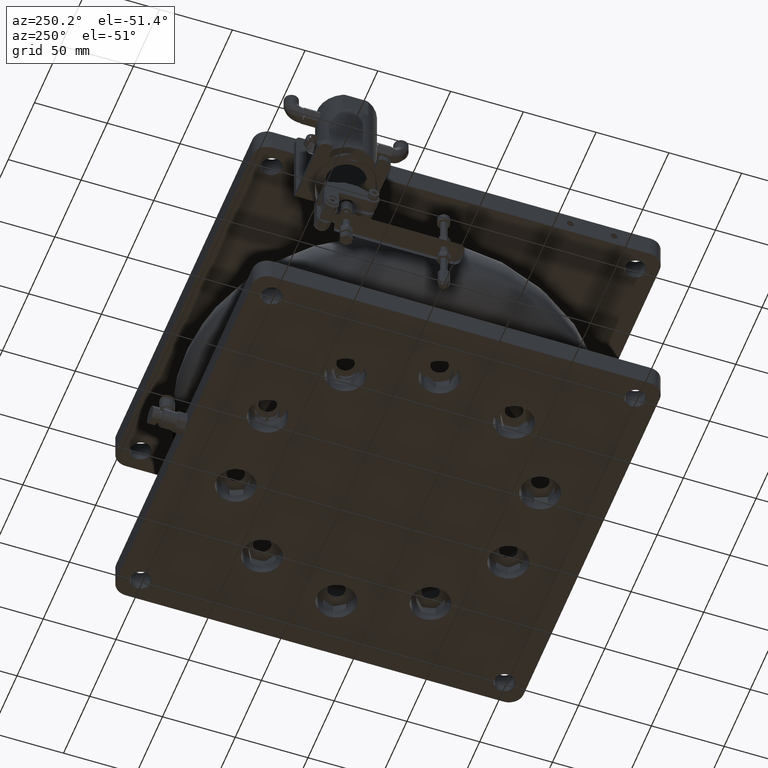
[diagram: clean part render]
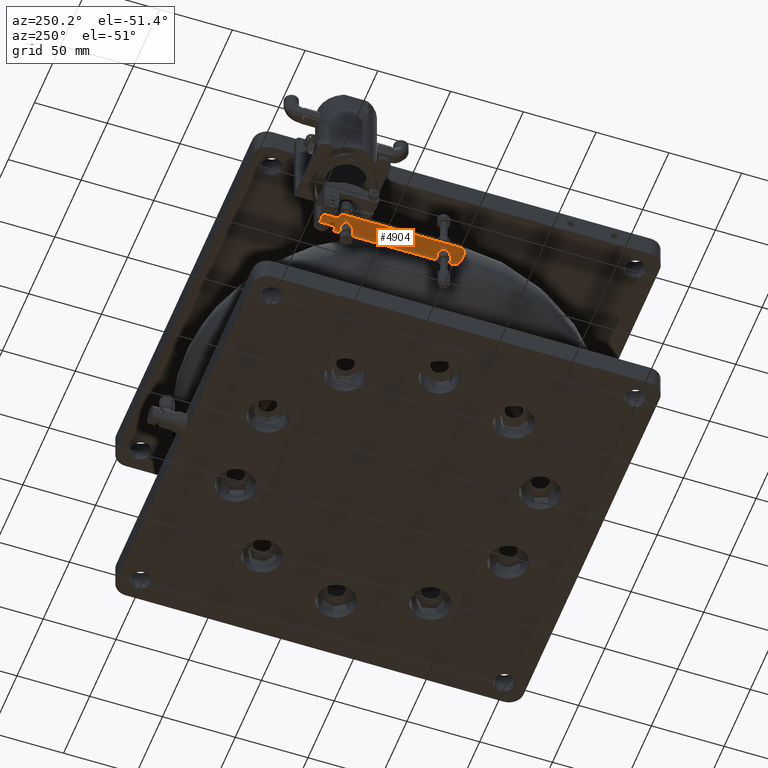
[diagram: same view with one face highlighted and labeled with its STEP entity id]
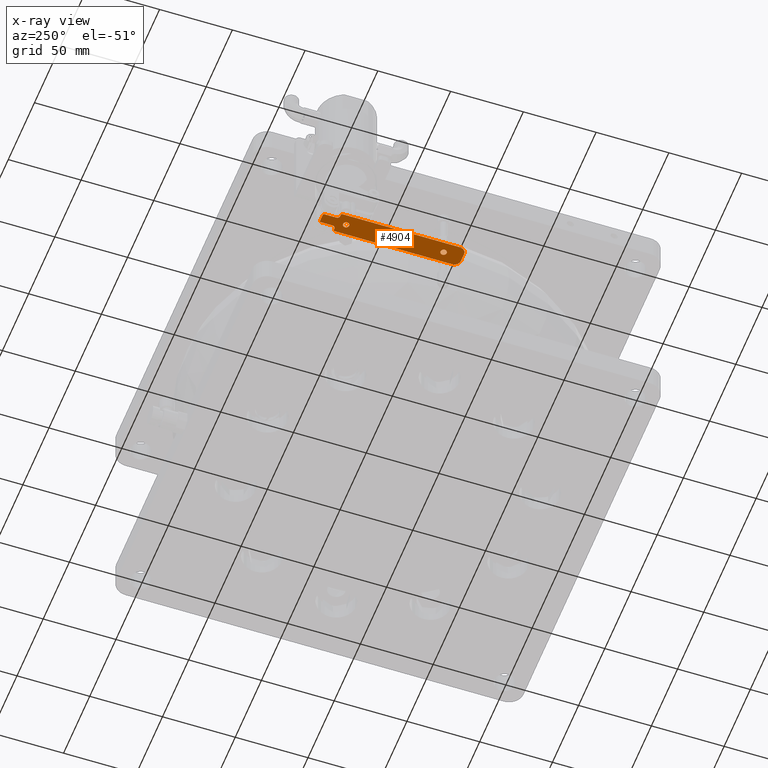
[diagram: x-ray of the same camera — body ghosted, the highlighted face saturated]
A machine part, auxiliary view. The second image highlights one B-rep face of the part: STEP entity #4904.
The next image is the same camera in x-ray: the body ghosted, the highlighted face saturated — about 0% of this face is hidden behind the body in this view.
In plain terms, the highlighted planar face has unit normal (0, -0, -1).
Its self-contained STEP definition (entity closure, byte-faithful):
#229 = CARTESIAN_POINT ( 'NONE',  ( -39.85068586333200358, 66.37900374810489268, 124.5000000000009663 ) ) ;
#233 = CARTESIAN_POINT ( 'NONE',  ( -36.14484242147124604, 70.69386750514597395, 124.5000000000009805 ) ) ;
#236 = LINE ( 'NONE', #429, #31167 ) ;
#395 = CARTESIAN_POINT ( 'NONE',  ( -44.19052148631738675, 72.45413560931432073, 124.5000000000009379 ) ) ;
#423 = CARTESIAN_POINT ( 'NONE',  ( -39.80122654258424575, 66.35723437368851307, 124.5000000000009237 ) ) ;
#429 = CARTESIAN_POINT ( 'NONE',  ( -40.69052148631737964, 70.45413560931432073, 124.5000000000009521 ) ) ;
#493 = CARTESIAN_POINT ( 'NONE',  ( -41.40122324521774289, -0.5696947893978466793, 124.5000000000010374 ) ) ;
#595 = EDGE_CURVE ( 'NONE', #10519, #949, #11530, .T. ) ;
#609 = CARTESIAN_POINT ( 'NONE',  ( -38.59058884332932138, 64.18744334804384266, 124.5000000000009663 ) ) ;
#678 = CARTESIAN_POINT ( 'NONE',  ( -42.79055516482335264, -2.679210521320460447, 124.5000000000009663 ) ) ;
#725 = CARTESIAN_POINT ( 'NONE',  ( -39.10318257006136378, -3.928426463864237661, 124.5000000000010090 ) ) ;
#807 = CARTESIAN_POINT ( 'NONE',  ( -39.88391330723290906, 66.39313422463543191, 124.5000000000009948 ) ) ;
#879 = CARTESIAN_POINT ( 'NONE',  ( -42.59362025068861612, -1.656569446948876534, 124.5000000000009948 ) ) ;
#940 = FACE_BOUND ( 'NONE', #11590, .T. ) ;
#949 = VERTEX_POINT ( 'NONE', #31623 ) ;
#1252 = CARTESIAN_POINT ( 'NONE',  ( -40.95774075453376639, -4.645864390685685130, 124.5000000000009805 ) ) ;
#1280 = EDGE_CURVE ( 'NONE', #24017, #16582, #27790, .T. ) ;
#1393 = VERTEX_POINT ( 'NONE', #5526 ) ;
#1651 = CARTESIAN_POINT ( 'NONE',  ( -40.13694558172575455, -4.573677987715503157, 124.5000000000009805 ) ) ;
#1846 = CARTESIAN_POINT ( 'NONE',  ( -38.75152287099698611, -3.352472569770414079, 124.5000000000009805 ) ) ;
#1987 = ORIENTED_EDGE ( 'NONE', *, *, #27213, .F. ) ;
#2047 = CARTESIAN_POINT ( 'NONE',  ( -38.78742272194548235, -3.435159334419681354, 124.5000000000009948 ) ) ;
#2133 = DIRECTION ( 'NONE',  ( -1.000000000000000000, 0.000000000000000000, -3.083952846180988111E-15 ) ) ;
#2194 = VECTOR ( 'NONE', #19615, 1000.000000000000000 ) ;
#2243 = CARTESIAN_POINT ( 'NONE',  ( -42.65518013726146052, 63.71225201842275965, 124.5000000000009379 ) ) ;
#2552 = DIRECTION ( 'NONE',  ( -1.000000000000000000, 0.000000000000000000, 0.000000000000000000 ) ) ;
#2619 = CARTESIAN_POINT ( 'NONE',  ( -42.79045412930543080, 64.72082787058745623, 124.5000000000009521 ) ) ;
#2821 = CARTESIAN_POINT ( 'NONE',  ( -47.69052148631735832, 70.45413560931432073, 124.5000000000009379 ) ) ;
#3155 = ORIENTED_EDGE ( 'NONE', *, *, #22465, .T. ) ;
#3184 = CARTESIAN_POINT ( 'NONE',  ( -36.03747453631026332, 70.64166416822567385, 124.5000000000009521 ) ) ;
#3492 = DIRECTION ( 'NONE',  ( -2.397764376542033099E-18, -1.000000000000000000, -7.666227838697817919E-33 ) ) ;
#3574 = CARTESIAN_POINT ( 'NONE',  ( -38.63973720874177076, 63.92907958156436621, 124.5000000000009805 ) ) ;
#3684 = CARTESIAN_POINT ( 'NONE',  ( -38.59058884332932848, -2.812556651957967446, 124.5000000000009948 ) ) ;
#3760 = CARTESIAN_POINT ( 'NONE',  ( -40.16563592142306760, 66.50498742005798647, 124.5000000000009521 ) ) ;
#3783 = VECTOR ( 'NONE', #6136, 1000.000000000000000 ) ;
#4409 = CARTESIAN_POINT ( 'NONE',  ( -40.69052148631737964, -4.645864390685685130, 124.5000000000009805 ) ) ;
#4461 = B_SPLINE_CURVE_WITH_KNOTS ( 'NONE', 3,
 ( #10086, #27297, #12878, #21960, #7117, #9703, #16021, #36369, #30245, #30451, #18790, #24540, #233, #3184, #33976, #36555, #33595, #9317, #15247, #30829 ),
 .UNSPECIFIED., .F., .F.,
 ( 4, 1, 1, 1, 2, 2, 2, 1, 1, 1, 2, 2, 4 ),
 ( 0.000000000000000000, 0.1249999999999069633, 0.1874999999998679390, 0.2187499999998550604, 0.2343749999998475109, 0.2499999999998399614, 0.4999999999998874234, 0.6249999999999111822, 0.6874999999999221734, 0.7187499999999333866, 0.7343749999999417133, 0.7499999999999499289, 1.000000000000000000 ),
 .UNSPECIFIED. ) ;
#4605 = CARTESIAN_POINT ( 'NONE',  ( -39.90201551341391450, -0.5994524821116249402, 124.5000000000010090 ) ) ;
#4608 = CARTESIAN_POINT ( 'NONE',  ( -42.71837928638630189, -3.099328560412121014, 124.5000000000009805 ) ) ;
#4733 = CARTESIAN_POINT ( 'NONE',  ( -43.69052148631738675, -15.54586439068569881, 124.5000000000009948 ) ) ;
#4742 = VECTOR ( 'NONE', #20587, 1000.000000000000000 ) ;
#4805 = CARTESIAN_POINT ( 'NONE',  ( -39.97981972741683876, -4.522033991973533951, 124.5000000000010090 ) ) ;
#4904 = ADVANCED_FACE ( 'NONE', ( #940, #31347, #10417 ), #13774, .F. ) ;
#4920 = ORIENTED_EDGE ( 'NONE', *, *, #14624, .F. ) ;
#5020 = CARTESIAN_POINT ( 'NONE',  ( -46.19052148631738675, 70.45413560931432073, 124.5000000000009379 ) ) ;
#5349 = VECTOR ( 'NONE', #29148, 1000.000000000000000 ) ;
#5381 = CARTESIAN_POINT ( 'NONE',  ( -42.68341957765395023, 63.79041047197202374, 124.5000000000010090 ) ) ;
#5526 = CARTESIAN_POINT ( 'NONE',  ( -43.69052148631737253, 81.45413560931433494, 124.5000000000009237 ) ) ;
#5748 = CARTESIAN_POINT ( 'NONE',  ( -33.19052148631737964, 81.45413560931433494, 124.5000000000010232 ) ) ;
#5772 = CARTESIAN_POINT ( 'NONE',  ( -41.57981643004984562, 62.55103684494017813, 124.5000000000009379 ) ) ;
#5776 = VERTEX_POINT ( 'NONE', #37423 ) ;
#5866 = VERTEX_POINT ( 'NONE', #21859 ) ;
#5968 = CARTESIAN_POINT ( 'NONE',  ( -42.27786040257054623, 65.83669768249669119, 124.5000000000009805 ) ) ;
#6028 = ORIENTED_EDGE ( 'NONE', *, *, #22800, .F. ) ;
#6136 = DIRECTION ( 'NONE',  ( 2.397764376542033099E-18, 1.000000000000000000, 7.666227838697817919E-33 ) ) ;
#6332 = CARTESIAN_POINT ( 'NONE',  ( -38.72586283537331298, 65.19601920020559760, 124.5000000000009379 ) ) ;
#6511 = ORIENTED_EDGE ( 'NONE', *, *, #11759, .F. ) ;
#6535 = CARTESIAN_POINT ( 'NONE',  ( -38.84449918115577560, 65.49642512723265497, 124.5000000000009521 ) ) ;
#6582 = CARTESIAN_POINT ( 'NONE',  ( -40.69052148631737964, 62.35413560931431221, 124.5000000000009521 ) ) ;
#6651 = CARTESIAN_POINT ( 'NONE',  ( -38.76565334752819325, -3.385700013671575803, 124.5000000000009948 ) ) ;
#6722 = CARTESIAN_POINT ( 'NONE',  ( -40.02673117029988248, 62.46126330308391772, 124.5000000000009379 ) ) ;
#6838 = ORIENTED_EDGE ( 'NONE', *, *, #22061, .F. ) ;
#6911 = CARTESIAN_POINT ( 'NONE',  ( -38.76565334753040304, 63.61429998632620197, 124.5000000000009805 ) ) ;
#7117 = CARTESIAN_POINT ( 'NONE',  ( -37.08849511129873378, 71.82195761134396150, 124.5000000000010090 ) ) ;
#7183 = CARTESIAN_POINT ( 'NONE',  ( -42.38017006142680998, -3.825959279653884160, 124.5000000000010232 ) ) ;
#7376 = CARTESIAN_POINT ( 'NONE',  ( -42.64973523899029573, -3.302032616525759412, 124.5000000000009805 ) ) ;
#7481 = VERTEX_POINT ( 'NONE', #7670 ) ;
#7562 = CARTESIAN_POINT ( 'NONE',  ( -39.80122654258413206, -0.6427656263130385739, 124.5000000000009948 ) ) ;
#7595 = DIRECTION ( 'NONE',  ( -3.197239859636987400E-15, 4.319345843114196478E-16, 1.000000000000000000 ) ) ;
#7656 = CARTESIAN_POINT ( 'NONE',  ( -39.94861727768159199, 62.48948511488342206, 124.5000000000009237 ) ) ;
#7670 = CARTESIAN_POINT ( 'NONE',  ( -37.69052148631738675, -15.54586439068570058, 124.5000000000009948 ) ) ;
#7821 = EDGE_CURVE ( 'NONE', #5776, #29063, #23346, .T. ) ;
#7820 = CIRCLE ( 'NONE', #24258, 4.500000000000003553 ) ;
#7904 = CARTESIAN_POINT ( 'NONE',  ( -37.19052148631737964, 80.95413560931434915, 124.5000000000009663 ) ) ;
#7972 = CARTESIAN_POINT ( 'NONE',  ( -38.69762339498083747, -1.882139253343686480, 124.5000000000009663 ) ) ;
#7984 = DIRECTION ( 'NONE',  ( 0.7071067811865622277, -0.7071067811865328068, 0.000000000000000000 ) ) ;
#8169 = CARTESIAN_POINT ( 'NONE',  ( -33.69052148631737964, 70.45413560931432073, 124.5000000000009805 ) ) ;
#8351 = CARTESIAN_POINT ( 'NONE',  ( -42.79055516482335975, 64.32078947867776719, 124.5000000000009805 ) ) ;
#8466 = EDGE_CURVE ( 'NONE', #14531, #25662, #17202, .T. ) ;
#8541 = CARTESIAN_POINT ( 'NONE',  ( -42.07308355949390943, 62.86679669305534901, 124.5000000000009521 ) ) ;
#8610 = DIRECTION ( 'NONE',  ( 3.197239859636987400E-15, -4.319345843114216692E-16, -1.000000000000000000 ) ) ;
#8705 = ORIENTED_EDGE ( 'NONE', *, *, #595, .F. ) ;
#8738 = CARTESIAN_POINT ( 'NONE',  ( -41.73281100423557888, 66.30015791447792139, 124.5000000000009663 ) ) ;
#9313 = CARTESIAN_POINT ( 'NONE',  ( -39.93435326047857359, 62.49492185664038146, 124.5000000000009237 ) ) ;
#9317 = CARTESIAN_POINT ( 'NONE',  ( -35.69042098450512412, 70.50094340860604802, 124.5000000000009805 ) ) ;
#9499 = CARTESIAN_POINT ( 'NONE',  ( -40.69052148631737964, 62.35413560931431221, 124.5000000000009521 ) ) ;
#9575 = CARTESIAN_POINT ( 'NONE',  ( -41.73281100423584888, -0.6998420855260945039, 124.5000000000009663 ) ) ;
#9703 = CARTESIAN_POINT ( 'NONE',  ( -37.07258777325819921, 71.77727875118225143, 124.5000000000010232 ) ) ;
#9820 = VERTEX_POINT ( 'NONE', #18474 ) ;
#9892 = CARTESIAN_POINT ( 'NONE',  ( -40.69052148631737964, 66.55413560931431505, 124.5000000000009521 ) ) ;
#10086 = CARTESIAN_POINT ( 'NONE',  ( -37.19052148631738675, 72.45413560931432073, 124.5000000000009663 ) ) ;
#10332 = CARTESIAN_POINT ( 'NONE',  ( -37.19052148631738675, 72.45413560931432073, 124.5000000000009663 ) ) ;
#10357 = CARTESIAN_POINT ( 'NONE',  ( -42.77214985273170100, -2.875844980556533148, 124.5000000000009521 ) ) ;
#10417 = FACE_BOUND ( 'NONE', #19202, .T. ) ;
#10519 = VERTEX_POINT ( 'NONE', #25640 ) ;
#10544 = CARTESIAN_POINT ( 'NONE',  ( -39.00087291119729116, -1.265769501724441026, 124.5000000000009948 ) ) ;
#10546 = CARTESIAN_POINT ( 'NONE',  ( -42.53880942637098173, -1.543837280926815714, 124.5000000000009663 ) ) ;
#10735 = CARTESIAN_POINT ( 'NONE',  ( -38.59048780781140664, -2.412518260049546726, 124.5000000000009663 ) ) ;
#10944 = CARTESIAN_POINT ( 'NONE',  ( -39.88391330723287354, -0.6068657753650591458, 124.5000000000009663 ) ) ;
#11245 = EDGE_CURVE ( 'NONE', #15043, #37499, #21246, .T. ) ;
#11318 = CARTESIAN_POINT ( 'NONE',  ( -41.69254859606880359, 62.60584766925568800, 124.5000000000009379 ) ) ;
#11516 = CARTESIAN_POINT ( 'NONE',  ( -42.38017006143956422, 63.17404072035704132, 124.5000000000009521 ) ) ;
#11530 = LINE ( 'NONE', #8169, #25479 ) ;
#11590 = EDGE_LOOP ( 'NONE', ( #37481, #36961 ) ) ;
#11713 = CARTESIAN_POINT ( 'NONE',  ( -40.82395274827305798, 66.55413560931432926, 124.5000000000009521 ) ) ;
#11759 = EDGE_CURVE ( 'NONE', #9820, #14531, #18259, .T. ) ;
#11797 = DIRECTION ( 'NONE',  ( -3.197239859636987400E-15, 4.319345843114196478E-16, 1.000000000000000000 ) ) ;
#11868 = LINE ( 'NONE', #36347, #35211 ) ;
#11905 = CARTESIAN_POINT ( 'NONE',  ( -42.61538962510526574, 65.29397123230199895, 124.5000000000009521 ) ) ;
#12669 = CARTESIAN_POINT ( 'NONE',  ( -39.47372170742714559, 66.17673943136614412, 124.5000000000009237 ) ) ;
#12746 = CARTESIAN_POINT ( 'NONE',  ( -42.63693761571443730, -1.757369071709116826, 124.5000000000009521 ) ) ;
#12793 = DIRECTION ( 'NONE',  ( 0.7071067811865474617, 0.7071067811865474617, 0.000000000000000000 ) ) ;
#12795 = CARTESIAN_POINT ( 'NONE',  ( -39.41042659735420273, -4.235512965803842178, 124.5000000000009948 ) ) ;
#12874 = CARTESIAN_POINT ( 'NONE',  ( -38.59048780781140664, 64.58748173994959529, 124.5000000000009521 ) ) ;
#12878 = CARTESIAN_POINT ( 'NONE',  ( -37.17296856158299789, 72.13973393617922625, 124.5000000000009521 ) ) ;
#12905 = EDGE_CURVE ( 'NONE', #16582, #1393, #11868, .T. ) ;
#13067 = CARTESIAN_POINT ( 'NONE',  ( -39.64823196837936337, 62.60811330416871101, 124.5000000000009663 ) ) ;
#13319 = CARTESIAN_POINT ( 'NONE',  ( -41.49712966540318604, -4.484863006005483044, 124.5000000000009805 ) ) ;
#13365 = LINE ( 'NONE', #28179, #36241 ) ;
#13519 = CARTESIAN_POINT ( 'NONE',  ( -42.27786040257254996, -1.163302317503473127, 124.5000000000010232 ) ) ;
#13641 = VERTEX_POINT ( 'NONE', #4733 ) ;
#13711 = CARTESIAN_POINT ( 'NONE',  ( -40.69052148631737964, -0.4458643906856893380, 124.5000000000009805 ) ) ;
#13774 = PLANE ( 'NONE',  #18412 ) ;
#13902 = CARTESIAN_POINT ( 'NONE',  ( -38.63973720874176365, -3.070920418422119269, 124.5000000000010090 ) ) ;
#14029 = B_SPLINE_CURVE_WITH_KNOTS ( 'NONE', 3,
 ( #4409, #22410, #25947, #1651, #14106, #4805, #33711, #19428, #20025, #12795, #725, #16865, #31465, #2047, #6651, #1846, #30752, #13902, #3684, #10735, #16461, #25563, #7972, #37590, #28518, #24846, #35027, #10544, #22599, #31662, #34620, #7562, #37978, #10944, #4605, #16667, #28718, #13711 ),
 .UNSPECIFIED., .F., .F.,
 ( 4, 1, 1, 1, 2, 2, 2, 1, 1, 1, 2, 2, 2, 1, 1, 1, 2, 2, 2, 1, 1, 1, 2, 2, 4 ),
 ( 0.000000000000000000, 0.06249999999998781530, 0.09374999999998009925, 0.1093749999999777678, 0.1171874999999781425, 0.1249999999999785172, 0.2499999999999839018, 0.3124999999999852340, 0.3437499999999859002, 0.3593749999999855671, 0.3671874999999847344, 0.3749999999999839573, 0.4999999999999760192, 0.5624999999999720224, 0.5937499999999704681, 0.6093749999999702460, 0.6171874999999700240, 0.6249999999999698019, 0.7499999999999724665, 0.8124999999999747979, 0.8437499999999746869, 0.8593749999999760192, 0.8671874999999780176, 0.8749999999999800160, 1.000000000000000000 ),
 .UNSPECIFIED. ) ;
#14106 = CARTESIAN_POINT ( 'NONE',  ( -40.02673117030510497, -4.538736696916096491, 124.5000000000009805 ) ) ;
#14159 = VECTOR ( 'NONE', #28183, 1000.000000000000000 ) ;
#14283 = EDGE_CURVE ( 'NONE', #5866, #949, #21760, .T. ) ;
#14298 = CARTESIAN_POINT ( 'NONE',  ( -41.02065105599979944, 66.53570503834323802, 124.5000000000009521 ) ) ;
#14479 = CARTESIAN_POINT ( 'NONE',  ( -41.47902745922130663, 62.50772370074027151, 124.5000000000009521 ) ) ;
#14531 = VERTEX_POINT ( 'NONE', #7904 ) ;
#14587 = ORIENTED_EDGE ( 'NONE', *, *, #11245, .F. ) ;
#14624 = EDGE_CURVE ( 'NONE', #36290, #24017, #20852, .T. ) ;
#14677 = CARTESIAN_POINT ( 'NONE',  ( -41.49712966540163706, 62.51513699399320956, 124.5000000000009663 ) ) ;
#14880 = CARTESIAN_POINT ( 'NONE',  ( -42.62952010163708394, 65.26074378839996371, 124.5000000000009237 ) ) ;
#15043 = VERTEX_POINT ( 'NONE', #6582 ) ;
#15115 = CARTESIAN_POINT ( 'NONE',  ( -40.69052148631737964, -0.4458643906856893380, 124.5000000000009805 ) ) ;
#15247 = CARTESIAN_POINT ( 'NONE',  ( -35.44502451146388466, 70.45413560931436336, 124.5000000000010090 ) ) ;
#15267 = ORIENTED_EDGE ( 'NONE', *, *, #14283, .T. ) ;
#15305 = CARTESIAN_POINT ( 'NONE',  ( -37.69052148631737253, 81.45413560931433494, 124.5000000000009521 ) ) ;
#15442 = CARTESIAN_POINT ( 'NONE',  ( -38.78742272194914165, 63.56484066557664647, 124.5000000000009521 ) ) ;
#15515 = CARTESIAN_POINT ( 'NONE',  ( -41.02065105600771489, -0.4642949616568036175, 124.5000000000009521 ) ) ;
#15691 = EDGE_CURVE ( 'NONE', #25662, #18172, #4461, .T. ) ;
#15820 = CARTESIAN_POINT ( 'NONE',  ( -38.96791766427912762, 63.23733583041372697, 124.5000000000009663 ) ) ;
#15893 = CARTESIAN_POINT ( 'NONE',  ( -40.69052148631737964, -4.645864390685685130, 124.5000000000009805 ) ) ;
#16021 = CARTESIAN_POINT ( 'NONE',  ( -37.06161719529919907, 71.74756120228128964, 124.5000000000009948 ) ) ;
#16086 = CARTESIAN_POINT ( 'NONE',  ( -42.61538962510618234, -1.706028767698107185, 124.5000000000009805 ) ) ;
#16461 = CARTESIAN_POINT ( 'NONE',  ( -38.60889311990305117, -2.215883800812455284, 124.5000000000009663 ) ) ;
#16582 = VERTEX_POINT ( 'NONE', #35718 ) ;
#16613 = DIRECTION ( 'NONE',  ( -1.380998469716210257E-30, -1.000000000000000000, 4.319345843114216692E-16 ) ) ;
#16667 = CARTESIAN_POINT ( 'NONE',  ( -40.16563592141402950, -0.4950125799419888284, 124.5000000000009663 ) ) ;
#16669 = CARTESIAN_POINT ( 'NONE',  ( -41.47902745922046819, -4.492276299259757799, 124.5000000000010090 ) ) ;
#16698 = DIRECTION ( 'NONE',  ( -1.000000000000000000, 0.000000000000000000, -3.083952846180988111E-15 ) ) ;
#16865 = CARTESIAN_POINT ( 'NONE',  ( -38.96791766427071479, -3.762664169577850437, 124.5000000000009379 ) ) ;
#17202 = LINE ( 'NONE', #23150, #30383 ) ;
#17210 = ORIENTED_EDGE ( 'NONE', *, *, #27151, .F. ) ;
#17441 = CARTESIAN_POINT ( 'NONE',  ( -42.66670661129158759, 63.74347309063347922, 124.5000000000009379 ) ) ;
#17610 = CARTESIAN_POINT ( 'NONE',  ( -48.19052148631739385, 81.45413560931433494, 124.5000000000009663 ) ) ;
#17831 = CARTESIAN_POINT ( 'NONE',  ( -42.59362025068708846, 65.34343055305122050, 124.5000000000009521 ) ) ;
#18172 = VERTEX_POINT ( 'NONE', #20824 ) ;
#18259 = LINE ( 'NONE', #15305, #25803 ) ;
#18401 = CARTESIAN_POINT ( 'NONE',  ( -40.42330221811639746, 66.55413560931431505, 124.5000000000009521 ) ) ;
#18412 = AXIS2_PLACEMENT_3D ( 'NONE', #23649, #8610, #32318 ) ;
#18474 = CARTESIAN_POINT ( 'NONE',  ( -37.69052148631737964, 81.45413560931433494, 124.5000000000009663 ) ) ;
#18786 = CARTESIAN_POINT ( 'NONE',  ( -39.97981972741371237, 62.47796600802649891, 124.5000000000009379 ) ) ;
#18790 = CARTESIAN_POINT ( 'NONE',  ( -36.50725443376725110, 70.94238892675066666, 124.5000000000009805 ) ) ;
#18973 = CARTESIAN_POINT ( 'NONE',  ( -38.66266368624846450, 65.00759977904139930, 124.5000000000009521 ) ) ;
#19202 = EDGE_LOOP ( 'NONE', ( #6838, #14587 ) ) ;
#19236 = LINE ( 'NONE', #31279, #2194 ) ;
#19244 = CARTESIAN_POINT ( 'NONE',  ( -42.62952010163756711, -1.739256211600070046, 124.5000000000009948 ) ) ;
#19292 = ORIENTED_EDGE ( 'NONE', *, *, #8466, .F. ) ;
#19428 = CARTESIAN_POINT ( 'NONE',  ( -39.93435326047799805, -4.505078143359031451, 124.5000000000010090 ) ) ;
#19431 = CARTESIAN_POINT ( 'NONE',  ( -41.90732126521719891, -4.268468212727966282, 124.5000000000009663 ) ) ;
#19615 = DIRECTION ( 'NONE',  ( 1.000000000000000000, -2.397764376547357910E-18, 1.035677359260713294E-33 ) ) ;
#19718 = CARTESIAN_POINT ( 'NONE',  ( -38.74410535692029356, 63.66564029033876437, 124.5000000000009663 ) ) ;
#20025 = CARTESIAN_POINT ( 'NONE',  ( -39.64823196838904096, -4.391886695841010990, 124.5000000000009948 ) ) ;
#20587 = DIRECTION ( 'NONE',  ( -1.000000000000000000, 2.397764376547357910E-18, -1.035677359260713294E-33 ) ) ;
#20602 = CARTESIAN_POINT ( 'NONE',  ( -42.41312530835902805, 65.67093538821315235, 124.5000000000009379 ) ) ;
#20797 = CARTESIAN_POINT ( 'NONE',  ( -41.21540705121347514, 62.40328379857062657, 124.5000000000009521 ) ) ;
#20824 = CARTESIAN_POINT ( 'NONE',  ( -35.19052148631739385, 70.45413560931432073, 124.5000000000009663 ) ) ;
#20852 = CIRCLE ( 'NONE', #34084, 2.000000000000001776 ) ;
#20999 = CARTESIAN_POINT ( 'NONE',  ( -41.97061637528629063, 66.14378418442484531, 124.5000000000009379 ) ) ;
#21149 = B_SPLINE_CURVE_WITH_KNOTS ( 'NONE', 3,
 ( #26727, #11713, #14298, #23195, #32448, #23776, #23969, #35791, #8738, #20999, #5968, #20602, #26923, #17831, #11905, #14880, #35986, #32636, #2619, #8351, #23381, #32248, #5381, #17441, #2243, #23582, #32824, #11516, #8541, #26330, #11318, #5772, #35602, #14677, #14479, #20797, #29485, #33025 ),
 .UNSPECIFIED., .F., .F.,
 ( 4, 1, 1, 1, 2, 2, 2, 1, 1, 1, 2, 2, 2, 1, 1, 1, 2, 2, 2, 1, 1, 1, 2, 2, 4 ),
 ( 0.000000000000000000, 0.06250000000000013878, 0.09374999999999795997, 0.1093749999999968636, 0.1171874999999978767, 0.1249999999999988759, 0.2500000000000262568, 0.3125000000000399680, 0.3437500000000442424, 0.3593750000000436318, 0.3671875000000413003, 0.3750000000000389133, 0.4999999999999836242, 0.5624999999999559241, 0.5937499999999457101, 0.6093749999999378275, 0.6171874999999339417, 0.6249999999999300559, 0.7499999999999509281, 0.8124999999999612532, 0.8437499999999678035, 0.8593749999999710232, 0.8671874999999712452, 0.8749999999999714673, 1.000000000000000000 ),
 .UNSPECIFIED. ) ;
#21246 = B_SPLINE_CURVE_WITH_KNOTS ( 'NONE', 3,
 ( #9499, #21370, #22683, #24535, #6722, #18786, #7656, #9313, #13067, #27672, #27292, #15820, #36750, #15442, #6911, #27871, #19718, #3574, #609, #12874, #21567, #18973, #27487, #33591, #6332, #31750, #6535, #30637, #24923, #12669, #36939, #423, #229, #807, #25111, #3760, #18401, #9892 ),
 .UNSPECIFIED., .F., .F.,
 ( 4, 1, 1, 1, 2, 2, 2, 1, 1, 1, 2, 2, 2, 1, 1, 1, 2, 2, 2, 1, 1, 1, 2, 2, 4 ),
 ( 0.000000000000000000, 0.06249999999998898104, 0.09374999999998184785, 0.1093749999999771710, 0.1171874999999732714, 0.1249999999999693856, 0.2499999999999248934, 0.3124999999999037437, 0.3437499999998930855, 0.3593749999998851474, 0.3671874999998805400, 0.3749999999998759326, 0.4999999999998575584, 0.5624999999998484546, 0.5937499999998441247, 0.6093749999998455680, 0.6171874999998463451, 0.6249999999998471223, 0.7499999999999055200, 0.8124999999999358291, 0.8437499999999495959, 0.8593749999999551470, 0.8671874999999565903, 0.8749999999999579225, 1.000000000000000000 ),
 .UNSPECIFIED. ) ;
#21336 = VERTEX_POINT ( 'NONE', #37968 ) ;
#21370 = CARTESIAN_POINT ( 'NONE',  ( -40.55709022434997024, 62.35413560931430510, 124.5000000000009521 ) ) ;
#21567 = CARTESIAN_POINT ( 'NONE',  ( -38.60889311990304407, 64.78411619918598774, 124.5000000000009521 ) ) ;
#21643 = CARTESIAN_POINT ( 'NONE',  ( -41.97061637528231159, -0.8562158155748647026, 124.5000000000009948 ) ) ;
#21760 = LINE ( 'NONE', #5748, #3783 ) ;
#21859 = CARTESIAN_POINT ( 'NONE',  ( -33.19052148631737964, -11.04586439068566683, 124.5000000000010232 ) ) ;
#21960 = CARTESIAN_POINT ( 'NONE',  ( -37.12177253110765918, 71.92692604272649248, 124.5000000000009663 ) ) ;
#22019 = CARTESIAN_POINT ( 'NONE',  ( -42.68341957765393602, -3.209589528026644878, 124.5000000000009663 ) ) ;
#22037 = EDGE_CURVE ( 'NONE', #29063, #5776, #14029, .T. ) ;
#22061 = EDGE_CURVE ( 'NONE', #37499, #15043, #21149, .T. ) ;
#22254 = LINE ( 'NONE', #30556, #35078 ) ;
#22410 = CARTESIAN_POINT ( 'NONE',  ( -40.55709022435677014, -4.645864390685686907, 124.5000000000010090 ) ) ;
#22414 = CARTESIAN_POINT ( 'NONE',  ( -42.79045412930543080, -2.279172129416140002, 124.5000000000009948 ) ) ;
#22465 = EDGE_CURVE ( 'NONE', #32642, #13641, #7820, .T. ) ;
#22599 = CARTESIAN_POINT ( 'NONE',  ( -39.30795941313983377, -0.9585254744286856310, 124.5000000000010232 ) ) ;
#22646 = CARTESIAN_POINT ( 'NONE',  ( -33.19052148631736543, 70.45413560931432073, 124.5000000000009805 ) ) ;
#22683 = CARTESIAN_POINT ( 'NONE',  ( -40.36039191661443226, 62.37256618028543187, 124.5000000000009521 ) ) ;
#22800 = EDGE_CURVE ( 'NONE', #23693, #36290, #236, .T. ) ;
#23150 = CARTESIAN_POINT ( 'NONE',  ( -37.19052148631737964, 32.95413560931434205, 124.5000000000009805 ) ) ;
#23195 = CARTESIAN_POINT ( 'NONE',  ( -41.24409739090251747, 66.48194920634415439, 124.5000000000009379 ) ) ;
#23346 = B_SPLINE_CURVE_WITH_KNOTS ( 'NONE', 3,
 ( #15115, #24218, #15515, #27556, #36244, #493, #24602, #36624, #9575, #21643, #13519, #37592, #10546, #879, #16086, #19244, #12746, #34436, #22414, #678, #10357, #4608, #22019, #31664, #24801, #7376, #24992, #7183, #34238, #19431, #31286, #31467, #36818, #13319, #16669, #28322, #1252, #15893 ),
 .UNSPECIFIED., .F., .F.,
 ( 4, 1, 1, 1, 2, 2, 2, 1, 1, 1, 2, 2, 2, 1, 1, 1, 2, 2, 2, 1, 1, 1, 2, 2, 4 ),
 ( 0.000000000000000000, 0.06249999999999381051, 0.09374999999999233946, 0.1093749999999931721, 0.1171874999999936023, 0.1249999999999940048, 0.2499999999999980016, 0.3124999999999999445, 0.3437500000000009992, 0.3593750000000014433, 0.3671875000000010547, 0.3750000000000006661, 0.4999999999999988898, 0.5624999999999980016, 0.5937499999999971134, 0.6093749999999972244, 0.6171874999999973355, 0.6249999999999974465, 0.7500000000000086597, 0.8125000000000143219, 0.8437500000000184297, 0.8593750000000205391, 0.8671875000000202061, 0.8750000000000198730, 1.000000000000000000 ),
 .UNSPECIFIED. ) ;
#23381 = CARTESIAN_POINT ( 'NONE',  ( -42.77214985273172232, 64.12415501944033736, 124.5000000000009805 ) ) ;
#23582 = CARTESIAN_POINT ( 'NONE',  ( -42.64973523899053731, 63.69796738347460519, 124.5000000000009521 ) ) ;
#23621 = EDGE_CURVE ( 'NONE', #13641, #7481, #19236, .T. ) ;
#23649 = CARTESIAN_POINT ( 'NONE',  ( -40.69052148631737964, 32.95413560931434205, 124.5000000000009663 ) ) ;
#23693 = VERTEX_POINT ( 'NONE', #2821 ) ;
#23776 = CARTESIAN_POINT ( 'NONE',  ( -41.40122324521566100, 66.43030521060218518, 124.5000000000009805 ) ) ;
#23969 = CARTESIAN_POINT ( 'NONE',  ( -41.43242569495032512, 66.41878610374520520, 124.5000000000009521 ) ) ;
#24017 = VERTEX_POINT ( 'NONE', #395 ) ;
#24218 = CARTESIAN_POINT ( 'NONE',  ( -40.82395274827758413, -0.4458643906856892825, 124.5000000000009948 ) ) ;
#24258 = AXIS2_PLACEMENT_3D ( 'NONE', #29962, #11797, #2133 ) ;
#24535 = CARTESIAN_POINT ( 'NONE',  ( -40.13694558171685856, 62.42632201228452260, 124.5000000000009521 ) ) ;
#24540 = CARTESIAN_POINT ( 'NONE',  ( -36.34939095466864956, 70.81356870663874759, 124.5000000000009237 ) ) ;
#24602 = CARTESIAN_POINT ( 'NONE',  ( -41.43242569495143357, -0.5812138962547914733, 124.5000000000009663 ) ) ;
#24801 = CARTESIAN_POINT ( 'NONE',  ( -42.65518013726144630, -3.287747981576861545, 124.5000000000009805 ) ) ;
#24846 = CARTESIAN_POINT ( 'NONE',  ( -38.73130773364418644, -1.789696164846122706, 124.5000000000009663 ) ) ;
#24849 = CARTESIAN_POINT ( 'NONE',  ( -44.19052148631738675, 81.45413560931433494, 124.5000000000009521 ) ) ;
#24913 = ORIENTED_EDGE ( 'NONE', *, *, #1280, .F. ) ;
#24923 = CARTESIAN_POINT ( 'NONE',  ( -39.30795941313994035, 66.04147452557334930, 124.5000000000009521 ) ) ;
#24949 = CIRCLE ( 'NONE', #33773, 4.500000000000003553 ) ;
#24992 = CARTESIAN_POINT ( 'NONE',  ( -42.53654379147967290, -3.588153908603341602, 124.5000000000010232 ) ) ;
#25018 = CARTESIAN_POINT ( 'NONE',  ( -37.69052148631738675, -11.04586439068568282, 124.5000000000010090 ) ) ;
#25111 = CARTESIAN_POINT ( 'NONE',  ( -39.90201551341333897, 66.40054751788838416, 124.5000000000009521 ) ) ;
#25479 = VECTOR ( 'NONE', #7984, 1000.000000000000000 ) ;
#25563 = CARTESIAN_POINT ( 'NONE',  ( -38.66266368624846450, -1.992400220957448065, 124.5000000000009805 ) ) ;
#25640 = CARTESIAN_POINT ( 'NONE',  ( -33.69052148631737964, 70.45413560931432073, 124.5000000000009805 ) ) ;
#25662 = VERTEX_POINT ( 'NONE', #10332 ) ;
#25803 = VECTOR ( 'NONE', #30509, 1000.000000000000000 ) ;
#25947 = CARTESIAN_POINT ( 'NONE',  ( -40.36039191662630543, -4.627433819714571683, 124.5000000000009805 ) ) ;
#26330 = CARTESIAN_POINT ( 'NONE',  ( -41.90732126520602208, 62.73153178726249735, 124.5000000000009521 ) ) ;
#26454 = EDGE_LOOP ( 'NONE', ( #27611, #34725, #15267, #8705, #1987, #38925, #19292, #6511, #34796, #27358, #24913, #4920, #6028, #17210, #38728, #3155 ) ) ;
#26688 = DIRECTION ( 'NONE',  ( 0.7071067811865574537, 0.7071067811865376918, -1.962615573354690182E-14 ) ) ;
#26727 = CARTESIAN_POINT ( 'NONE',  ( -40.69052148631737964, 66.55413560931431505, 124.5000000000009521 ) ) ;
#26923 = CARTESIAN_POINT ( 'NONE',  ( -42.53880942636838114, 65.45616271907339012, 124.5000000000009805 ) ) ;
#27151 = EDGE_CURVE ( 'NONE', #21336, #23693, #13365, .T. ) ;
#27213 = EDGE_CURVE ( 'NONE', #18172, #10519, #32100, .T. ) ;
#27292 = CARTESIAN_POINT ( 'NONE',  ( -39.10318257006615994, 63.07157353613096262, 124.5000000000009663 ) ) ;
#27297 = CARTESIAN_POINT ( 'NONE',  ( -37.19052148631738675, 72.32706246888881196, 124.5000000000009521 ) ) ;
#27358 = ORIENTED_EDGE ( 'NONE', *, *, #12905, .F. ) ;
#27430 = CARTESIAN_POINT ( 'NONE',  ( -40.69052148631737964, 66.55413560931431505, 124.5000000000009521 ) ) ;
#27487 = CARTESIAN_POINT ( 'NONE',  ( -38.69762339498083037, 65.11786074665562296, 124.5000000000009237 ) ) ;
#27556 = CARTESIAN_POINT ( 'NONE',  ( -41.24409739090845761, -0.5180507936558804705, 124.5000000000009805 ) ) ;
#27611 = ORIENTED_EDGE ( 'NONE', *, *, #23621, .T. ) ;
#27672 = CARTESIAN_POINT ( 'NONE',  ( -39.41042659734460329, 62.76448703420577147, 124.5000000000009948 ) ) ;
#27790 = LINE ( 'NONE', #24849, #14159 ) ;
#27871 = CARTESIAN_POINT ( 'NONE',  ( -38.75152287099813719, 63.64752743022840065, 124.5000000000009663 ) ) ;
#28179 = CARTESIAN_POINT ( 'NONE',  ( -48.19052148631738675, 69.95413560931429231, 124.5000000000009237 ) ) ;
#28183 = DIRECTION ( 'NONE',  ( 2.397764376542033099E-18, 1.000000000000000000, 7.666227838697817919E-33 ) ) ;
#28322 = CARTESIAN_POINT ( 'NONE',  ( -41.21540705122708914, -4.596716201429387638, 124.5000000000009663 ) ) ;
#28359 = EDGE_CURVE ( 'NONE', #7481, #5866, #24949, .T. ) ;
#28518 = CARTESIAN_POINT ( 'NONE',  ( -38.72586283537331298, -1.803980799794182799, 124.5000000000010090 ) ) ;
#28718 = CARTESIAN_POINT ( 'NONE',  ( -40.42330221810734514, -0.4458643906856895600, 124.5000000000009805 ) ) ;
#28802 = EDGE_CURVE ( 'NONE', #9820, #1393, #35583, .T. ) ;
#28842 = DIRECTION ( 'NONE',  ( -3.197239859636987400E-15, 4.319345843114196478E-16, 1.000000000000000000 ) ) ;
#29063 = VERTEX_POINT ( 'NONE', #38934 ) ;
#29148 = DIRECTION ( 'NONE',  ( 1.000000000000000000, -2.397764376547357910E-18, 1.035677359260713294E-33 ) ) ;
#29485 = CARTESIAN_POINT ( 'NONE',  ( -40.95774075452015950, 62.35413560931431931, 124.5000000000009663 ) ) ;
#29613 = CARTESIAN_POINT ( 'NONE',  ( -46.19052148631738675, 72.45413560931432073, 124.5000000000009379 ) ) ;
#29826 = EDGE_CURVE ( 'NONE', #21336, #32642, #22254, .T. ) ;
#29962 = CARTESIAN_POINT ( 'NONE',  ( -43.69052148631739385, -11.04586439068569881, 124.5000000000009948 ) ) ;
#30059 = DIRECTION ( 'NONE',  ( 1.000000000000000000, -0.000000000000000000, 3.197239859636987400E-15 ) ) ;
#30245 = CARTESIAN_POINT ( 'NONE',  ( -36.94864728487428351, 71.46149326233778254, 124.5000000000009948 ) ) ;
#30383 = VECTOR ( 'NONE', #16613, 1000.000000000000000 ) ;
#30451 = CARTESIAN_POINT ( 'NONE',  ( -36.79969627853695613, 71.23498828732238053, 124.5000000000009663 ) ) ;
#30509 = DIRECTION ( 'NONE',  ( 0.7071067811865524577, -0.7071067811865426878, 1.962615573354758024E-14 ) ) ;
#30556 = CARTESIAN_POINT ( 'NONE',  ( -48.19052148631738675, 81.45413560931433494, 124.5000000000009379 ) ) ;
#30637 = CARTESIAN_POINT ( 'NONE',  ( -39.00087291119701405, 65.73423049827154330, 124.5000000000009237 ) ) ;
#30752 = CARTESIAN_POINT ( 'NONE',  ( -38.74410535692031488, -3.334359709662085614, 124.5000000000009948 ) ) ;
#30829 = CARTESIAN_POINT ( 'NONE',  ( -35.19052148631739385, 70.45413560931432073, 124.5000000000009663 ) ) ;
#31167 = VECTOR ( 'NONE', #30059, 1000.000000000000000 ) ;
#31279 = CARTESIAN_POINT ( 'NONE',  ( -48.19052148631739385, -15.54586439068570058, 124.5000000000009948 ) ) ;
#31286 = CARTESIAN_POINT ( 'NONE',  ( -41.69254859607714536, -4.394152330737162160, 124.5000000000009237 ) ) ;
#31347 = FACE_OUTER_BOUND ( 'NONE', #26454, .T. ) ;
#31465 = CARTESIAN_POINT ( 'NONE',  ( -38.84223354626262648, -3.547891500439737555, 124.5000000000009948 ) ) ;
#31467 = CARTESIAN_POINT ( 'NONE',  ( -41.57981643005472705, -4.448963155055663421, 124.5000000000009805 ) ) ;
#31623 = CARTESIAN_POINT ( 'NONE',  ( -33.19052148631737964, 69.95413560931434915, 124.5000000000010232 ) ) ;
#31662 = CARTESIAN_POINT ( 'NONE',  ( -39.47372170742690400, -0.8232605686373256626, 124.5000000000009379 ) ) ;
#31664 = CARTESIAN_POINT ( 'NONE',  ( -42.66670661129158049, -3.256526909365724531, 124.5000000000009948 ) ) ;
#31750 = CARTESIAN_POINT ( 'NONE',  ( -38.73130773364443513, 65.21030383515434892, 124.5000000000009521 ) ) ;
#32100 = LINE ( 'NONE', #22646, #5349 ) ;
#32248 = CARTESIAN_POINT ( 'NONE',  ( -42.71837928638630189, 63.90067143958556528, 124.5000000000009663 ) ) ;
#32318 = DIRECTION ( 'NONE',  ( -1.000000000000000000, 0.000000000000000000, -3.197239859636987400E-15 ) ) ;
#32448 = CARTESIAN_POINT ( 'NONE',  ( -41.35431180232588844, 66.44700791554471664, 124.5000000000009521 ) ) ;
#32636 = CARTESIAN_POINT ( 'NONE',  ( -42.74130576389299563, 64.97919163705709877, 124.5000000000009805 ) ) ;
#32642 = VERTEX_POINT ( 'NONE', #33448 ) ;
#32824 = CARTESIAN_POINT ( 'NONE',  ( -42.53654379147589282, 63.41184609139102690, 124.5000000000009521 ) ) ;
#33025 = CARTESIAN_POINT ( 'NONE',  ( -40.69052148631737964, 62.35413560931431221, 124.5000000000009521 ) ) ;
#33448 = CARTESIAN_POINT ( 'NONE',  ( -48.19052148631738675, -11.04586439068567572, 124.5000000000009663 ) ) ;
#33591 = CARTESIAN_POINT ( 'NONE',  ( -38.71433636134317169, 65.16479812799457250, 124.5000000000008953 ) ) ;
#33595 = CARTESIAN_POINT ( 'NONE',  ( -35.94147902549963192, 70.60040998210092766, 124.5000000000009521 ) ) ;
#33711 = CARTESIAN_POINT ( 'NONE',  ( -39.94861727768322623, -4.510514885116588601, 124.5000000000009663 ) ) ;
#33773 = AXIS2_PLACEMENT_3D ( 'NONE', #25018, #7595, #16698 ) ;
#33976 = CARTESIAN_POINT ( 'NONE',  ( -35.99036823869221990, 70.62093000893685257, 124.5000000000009663 ) ) ;
#34084 = AXIS2_PLACEMENT_3D ( 'NONE', #29613, #28842, #2552 ) ;
#34238 = CARTESIAN_POINT ( 'NONE',  ( -42.07308355950029011, -4.133203306939214450, 124.5000000000009805 ) ) ;
#34436 = CARTESIAN_POINT ( 'NONE',  ( -42.74130576389300984, -2.020808362951987736, 124.5000000000009948 ) ) ;
#34620 = CARTESIAN_POINT ( 'NONE',  ( -39.68849437656461987, -0.6975764506296551204, 124.5000000000009805 ) ) ;
#34725 = ORIENTED_EDGE ( 'NONE', *, *, #28359, .T. ) ;
#34796 = ORIENTED_EDGE ( 'NONE', *, *, #28802, .T. ) ;
#35027 = CARTESIAN_POINT ( 'NONE',  ( -38.84449918115951306, -1.503574872759898318, 124.5000000000009948 ) ) ;
#35078 = VECTOR ( 'NONE', #3492, 1000.000000000000000 ) ;
#35211 = VECTOR ( 'NONE', #26688, 999.9999999999998863 ) ;
#35583 = LINE ( 'NONE', #17610, #4742 ) ;
#35602 = CARTESIAN_POINT ( 'NONE',  ( -41.53035710930235780, 62.52926747052379852, 124.5000000000009663 ) ) ;
#35718 = CARTESIAN_POINT ( 'NONE',  ( -44.19052148631737964, 80.95413560931433494, 124.5000000000009379 ) ) ;
#35791 = CARTESIAN_POINT ( 'NONE',  ( -41.44668971215741493, 66.41334936198715866, 124.5000000000009521 ) ) ;
#35986 = CARTESIAN_POINT ( 'NONE',  ( -42.63693761571445151, 65.24263092829032473, 124.5000000000009379 ) ) ;
#36241 = VECTOR ( 'NONE', #12793, 1000.000000000000114 ) ;
#36244 = CARTESIAN_POINT ( 'NONE',  ( -41.35431180232936299, -0.5529920844552834724, 124.5000000000009948 ) ) ;
#36290 = VERTEX_POINT ( 'NONE', #5020 ) ;
#36347 = CARTESIAN_POINT ( 'NONE',  ( -44.19052148631738675, 80.95413560931433494, 124.5000000000009379 ) ) ;
#36369 = CARTESIAN_POINT ( 'NONE',  ( -37.05643876366524125, 71.73397449818136806, 124.5000000000009663 ) ) ;
#36555 = CARTESIAN_POINT ( 'NONE',  ( -35.95872148701533177, 70.60747139149792417, 124.5000000000009521 ) ) ;
#36624 = CARTESIAN_POINT ( 'NONE',  ( -41.44668971215740072, -0.5866506380126180753, 124.5000000000009663 ) ) ;
#36750 = CARTESIAN_POINT ( 'NONE',  ( -38.84223354626892899, 63.45210849955395815, 124.5000000000009805 ) ) ;
#36818 = CARTESIAN_POINT ( 'NONE',  ( -41.53035710930530655, -4.470732529473733230, 124.5000000000009948 ) ) ;
#36939 = CARTESIAN_POINT ( 'NONE',  ( -39.68849437656477619, 66.30242354937298899, 124.5000000000009379 ) ) ;
#36961 = ORIENTED_EDGE ( 'NONE', *, *, #22037, .F. ) ;
#37423 = CARTESIAN_POINT ( 'NONE',  ( -40.69052148631737964, -0.4458643906856893380, 124.5000000000009805 ) ) ;
#37481 = ORIENTED_EDGE ( 'NONE', *, *, #7821, .F. ) ;
#37499 = VERTEX_POINT ( 'NONE', #27430 ) ;
#37590 = CARTESIAN_POINT ( 'NONE',  ( -38.71433636134317879, -1.835201872005021828, 124.5000000000009805 ) ) ;
#37592 = CARTESIAN_POINT ( 'NONE',  ( -42.41312530836253103, -1.329064611787105221, 124.5000000000009805 ) ) ;
#37968 = CARTESIAN_POINT ( 'NONE',  ( -48.19052148631738675, 69.95413560931429231, 124.5000000000009379 ) ) ;
#37978 = CARTESIAN_POINT ( 'NONE',  ( -39.85068586333193963, -0.6209962518960472355, 124.5000000000009948 ) ) ;
#38728 = ORIENTED_EDGE ( 'NONE', *, *, #29826, .T. ) ;
#38925 = ORIENTED_EDGE ( 'NONE', *, *, #15691, .F. ) ;
#38934 = CARTESIAN_POINT ( 'NONE',  ( -40.69052148631737964, -4.645864390685685130, 124.5000000000009805 ) ) ;